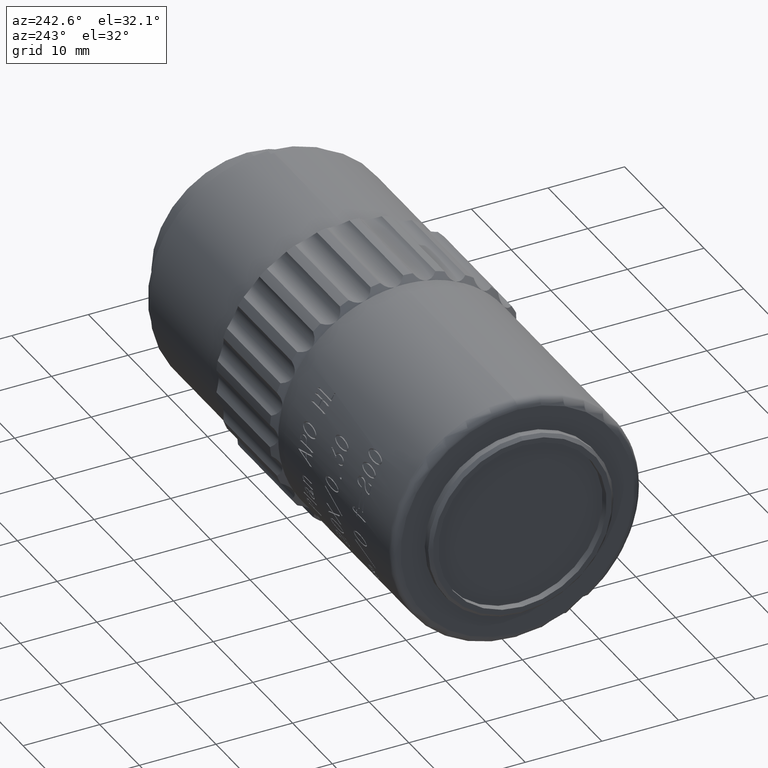
[diagram: clean part render]
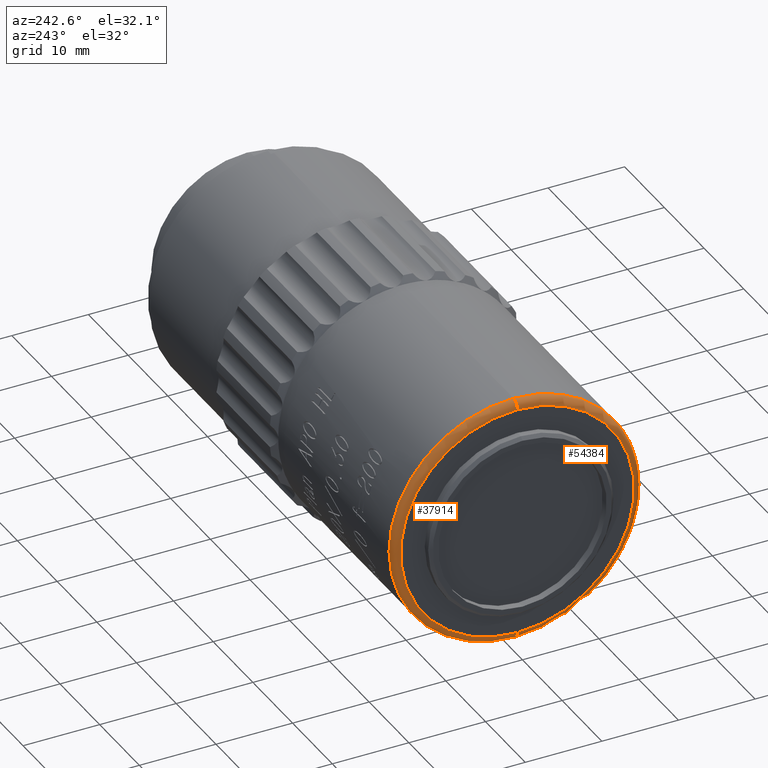
[diagram: same view with one multi-face feature highlighted, each face labeled with its STEP entity id]
A machine part, auxiliary view. The highlighted faces form ONE feature: a constant-radius fillet chain: 2 tangent blend faces with common blend radius 1 mm. The faces share edges in the B-rep.
Their STEP definitions:
[1] entity #54384 (Torus):
#2166 = DIRECTION ( 'NONE',  ( 0.000000000000000000, 1.000000000000000000, -1.224646799147353207E-16 ) ) ;
#3212 = CIRCLE ( 'NONE', #4982, 1.000000000000000888 ) ;
#4409 = DIRECTION ( 'NONE',  ( 0.000000000000000000, 0.000000000000000000, -1.000000000000000000 ) ) ;
#4982 = AXIS2_PLACEMENT_3D ( 'NONE', #40180, #2166, #19085 ) ;
#7736 = VERTEX_POINT ( 'NONE', #34911 ) ;
#8371 = DIRECTION ( 'NONE',  ( 1.000000000000000000, 0.000000000000000000, 0.000000000000000000 ) ) ;
#8763 = DIRECTION ( 'NONE',  ( 0.000000000000000000, 0.000000000000000000, -1.000000000000000000 ) ) ;
#9386 = CARTESIAN_POINT ( 'NONE',  ( 2.250000000000001332, 0.000000000000000000, 0.000000000000000000 ) ) ;
#9765 = ORIENTED_EDGE ( 'NONE', *, *, #21157, .F. ) ;
#10707 = ORIENTED_EDGE ( 'NONE', *, *, #52682, .T. ) ;
#14387 = CIRCLE ( 'NONE', #45430, 1.000000000000000888 ) ;
#14726 = CIRCLE ( 'NONE', #45771, 16.25000000000000000 ) ;
#16704 = EDGE_LOOP ( 'NONE', ( #31688, #9765, #10707, #37176 ) ) ;
#18904 = VERTEX_POINT ( 'NONE', #41660 ) ;
#19085 = DIRECTION ( 'NONE',  ( 0.000000000000000000, 1.224646799147353454E-16, 1.000000000000000000 ) ) ;
#20324 = DIRECTION ( 'NONE',  ( 0.000000000000000000, 0.000000000000000000, -1.000000000000000000 ) ) ;
#21157 = EDGE_CURVE ( 'NONE', #7736, #18904, #41514, .T. ) ;
#22629 = CARTESIAN_POINT ( 'NONE',  ( 2.250000000000001332, 1.990051048614449313E-15, -16.25000000000000000 ) ) ;
#23705 = TOROIDAL_SURFACE ( 'NONE', #41480, 15.25000000000000000, 1.000000000000000000 ) ;
#24026 = CARTESIAN_POINT ( 'NONE',  ( 2.250000000000001332, 0.000000000000000000, 16.25000000000000000 ) ) ;
#25232 = VERTEX_POINT ( 'NONE', #22629 ) ;
#25858 = EDGE_CURVE ( 'NONE', #18904, #29996, #3212, .T. ) ;
#27255 = DIRECTION ( 'NONE',  ( 0.000000000000000000, 0.000000000000000000, -1.000000000000000000 ) ) ;
#27807 = DIRECTION ( 'NONE',  ( 0.000000000000000000, -1.000000000000000000, 0.000000000000000000 ) ) ;
#28202 = AXIS2_PLACEMENT_3D ( 'NONE', #50925, #54534, #8763 ) ;
#29996 = VERTEX_POINT ( 'NONE', #24026 ) ;
#31688 = ORIENTED_EDGE ( 'NONE', *, *, #25858, .F. ) ;
#33574 = FACE_OUTER_BOUND ( 'NONE', #16704, .T. ) ;
#34911 = CARTESIAN_POINT ( 'NONE',  ( 1.250000000000001110, 0.000000000000000000, -15.25000000000000000 ) ) ;
#37176 = ORIENTED_EDGE ( 'NONE', *, *, #38412, .F. ) ;
#38412 = EDGE_CURVE ( 'NONE', #29996, #25232, #14726, .T. ) ;
#40180 = CARTESIAN_POINT ( 'NONE',  ( 2.250000000000001332, 1.867586368699713770E-15, 15.25000000000000000 ) ) ;
#41480 = AXIS2_PLACEMENT_3D ( 'NONE', #9386, #50480, #4409 ) ;
#41514 = CIRCLE ( 'NONE', #28202, 15.25000000000000000 ) ;
#41660 = CARTESIAN_POINT ( 'NONE',  ( 1.250000000000001110, 1.928818708657081739E-15, 15.25000000000000000 ) ) ;
#45430 = AXIS2_PLACEMENT_3D ( 'NONE', #52473, #27807, #27255 ) ;
#45771 = AXIS2_PLACEMENT_3D ( 'NONE', #46665, #8371, #20324 ) ;
#46665 = CARTESIAN_POINT ( 'NONE',  ( 2.250000000000001332, 0.000000000000000000, 0.000000000000000000 ) ) ;
#50480 = DIRECTION ( 'NONE',  ( 1.000000000000000000, 0.000000000000000000, 0.000000000000000000 ) ) ;
#50925 = CARTESIAN_POINT ( 'NONE',  ( 1.250000000000001110, 0.000000000000000000, 0.000000000000000000 ) ) ;
#52473 = CARTESIAN_POINT ( 'NONE',  ( 2.250000000000001332, 0.000000000000000000, -15.25000000000000000 ) ) ;
#52682 = EDGE_CURVE ( 'NONE', #7736, #25232, #14387, .T. ) ;
#54384 = ADVANCED_FACE ( 'NONE', ( #33574 ), #23705, .T. ) ;
#54534 = DIRECTION ( 'NONE',  ( -1.000000000000000000, -0.000000000000000000, -0.000000000000000000 ) ) ;
[2] entity #37914 (Torus):
#2166 = DIRECTION ( 'NONE',  ( 0.000000000000000000, 1.000000000000000000, -1.224646799147353207E-16 ) ) ;
#2297 = TOROIDAL_SURFACE ( 'NONE', #8479, 15.25000000000000000, 1.000000000000000000 ) ;
#3212 = CIRCLE ( 'NONE', #4982, 1.000000000000000888 ) ;
#3752 = CARTESIAN_POINT ( 'NONE',  ( 1.250000000000001110, 0.000000000000000000, 0.000000000000000000 ) ) ;
#4982 = AXIS2_PLACEMENT_3D ( 'NONE', #40180, #2166, #19085 ) ;
#7736 = VERTEX_POINT ( 'NONE', #34911 ) ;
#8479 = AXIS2_PLACEMENT_3D ( 'NONE', #11063, #27183, #14681 ) ;
#9903 = EDGE_CURVE ( 'NONE', #18904, #7736, #49518, .T. ) ;
#11063 = CARTESIAN_POINT ( 'NONE',  ( 2.250000000000001332, 0.000000000000000000, 0.000000000000000000 ) ) ;
#12568 = CARTESIAN_POINT ( 'NONE',  ( 2.250000000000001332, 0.000000000000000000, 0.000000000000000000 ) ) ;
#13914 = DIRECTION ( 'NONE',  ( 1.000000000000000000, 0.000000000000000000, 0.000000000000000000 ) ) ;
#14214 = ORIENTED_EDGE ( 'NONE', *, *, #52682, .F. ) ;
#14387 = CIRCLE ( 'NONE', #45430, 1.000000000000000888 ) ;
#14681 = DIRECTION ( 'NONE',  ( 0.000000000000000000, 0.000000000000000000, -1.000000000000000000 ) ) ;
#16900 = ORIENTED_EDGE ( 'NONE', *, *, #18743, .F. ) ;
#18743 = EDGE_CURVE ( 'NONE', #25232, #29996, #53527, .T. ) ;
#18904 = VERTEX_POINT ( 'NONE', #41660 ) ;
#19085 = DIRECTION ( 'NONE',  ( 0.000000000000000000, 1.224646799147353454E-16, 1.000000000000000000 ) ) ;
#22629 = CARTESIAN_POINT ( 'NONE',  ( 2.250000000000001332, 1.990051048614449313E-15, -16.25000000000000000 ) ) ;
#22781 = DIRECTION ( 'NONE',  ( 0.000000000000000000, 0.000000000000000000, -1.000000000000000000 ) ) ;
#23561 = FACE_OUTER_BOUND ( 'NONE', #45508, .T. ) ;
#24026 = CARTESIAN_POINT ( 'NONE',  ( 2.250000000000001332, 0.000000000000000000, 16.25000000000000000 ) ) ;
#25232 = VERTEX_POINT ( 'NONE', #22629 ) ;
#25858 = EDGE_CURVE ( 'NONE', #18904, #29996, #3212, .T. ) ;
#27183 = DIRECTION ( 'NONE',  ( 1.000000000000000000, 0.000000000000000000, 0.000000000000000000 ) ) ;
#27255 = DIRECTION ( 'NONE',  ( 0.000000000000000000, 0.000000000000000000, -1.000000000000000000 ) ) ;
#27807 = DIRECTION ( 'NONE',  ( 0.000000000000000000, -1.000000000000000000, 0.000000000000000000 ) ) ;
#28459 = DIRECTION ( 'NONE',  ( -1.000000000000000000, -0.000000000000000000, -0.000000000000000000 ) ) ;
#29996 = VERTEX_POINT ( 'NONE', #24026 ) ;
#34911 = CARTESIAN_POINT ( 'NONE',  ( 1.250000000000001110, 0.000000000000000000, -15.25000000000000000 ) ) ;
#37914 = ADVANCED_FACE ( 'NONE', ( #23561 ), #2297, .T. ) ;
#40180 = CARTESIAN_POINT ( 'NONE',  ( 2.250000000000001332, 1.867586368699713770E-15, 15.25000000000000000 ) ) ;
#41496 = DIRECTION ( 'NONE',  ( 0.000000000000000000, 0.000000000000000000, -1.000000000000000000 ) ) ;
#41660 = CARTESIAN_POINT ( 'NONE',  ( 1.250000000000001110, 1.928818708657081739E-15, 15.25000000000000000 ) ) ;
#45430 = AXIS2_PLACEMENT_3D ( 'NONE', #52473, #27807, #27255 ) ;
#45508 = EDGE_LOOP ( 'NONE', ( #53801, #50050, #16900, #14214 ) ) ;
#47337 = AXIS2_PLACEMENT_3D ( 'NONE', #12568, #13914, #22781 ) ;
#49518 = CIRCLE ( 'NONE', #51295, 15.25000000000000000 ) ;
#50050 = ORIENTED_EDGE ( 'NONE', *, *, #25858, .T. ) ;
#51295 = AXIS2_PLACEMENT_3D ( 'NONE', #3752, #28459, #41496 ) ;
#52473 = CARTESIAN_POINT ( 'NONE',  ( 2.250000000000001332, 0.000000000000000000, -15.25000000000000000 ) ) ;
#52682 = EDGE_CURVE ( 'NONE', #7736, #25232, #14387, .T. ) ;
#53527 = CIRCLE ( 'NONE', #47337, 16.25000000000000000 ) ;
#53801 = ORIENTED_EDGE ( 'NONE', *, *, #9903, .F. ) ;